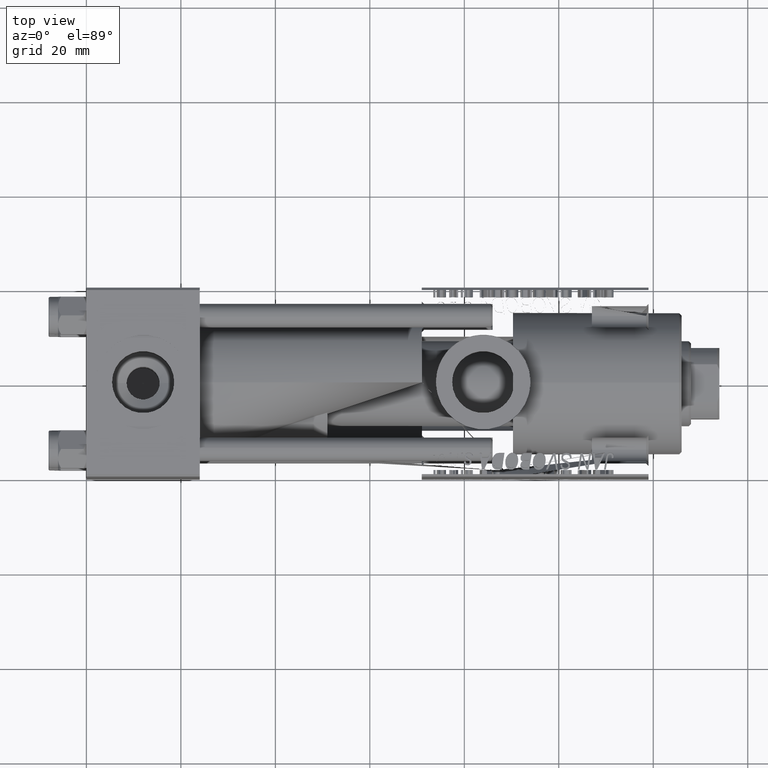
[diagram: clean part render]
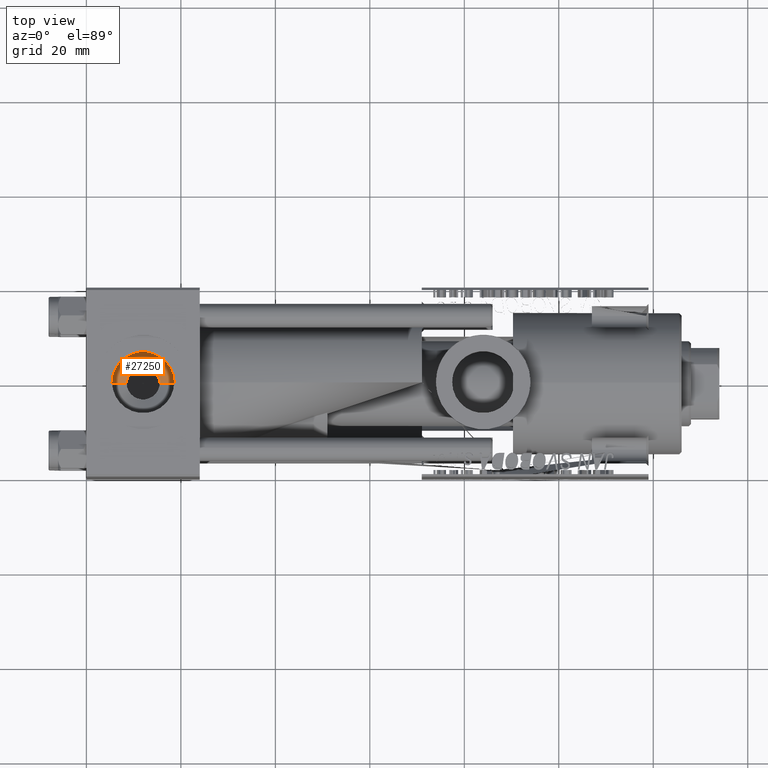
[diagram: same view with one face highlighted and labeled with its STEP entity id]
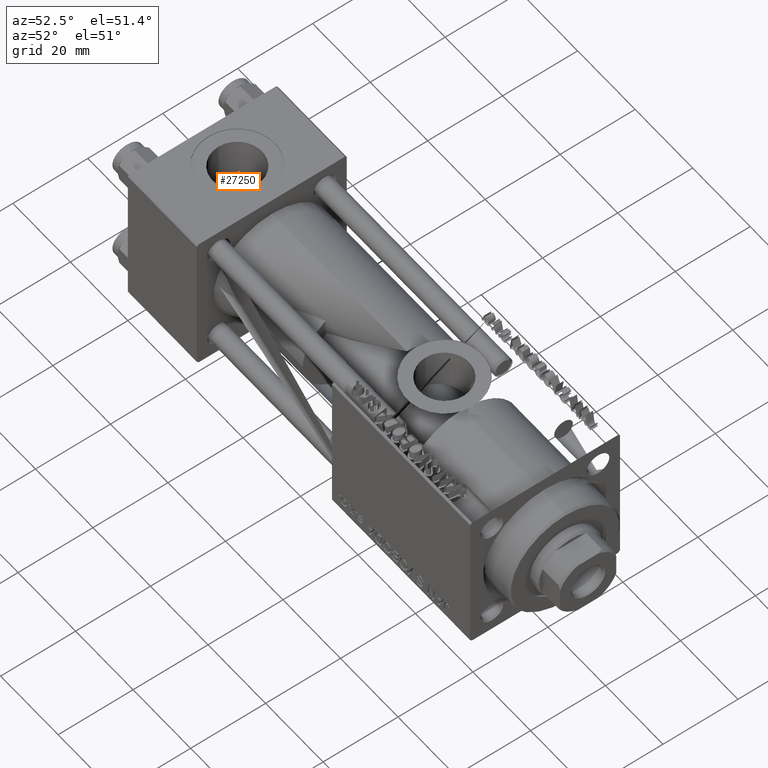
[diagram: same view with one face highlighted and labeled with its STEP entity id]
A machine part, top view. The second image highlights one B-rep face of the part: STEP entity #27250.
A second angle (auxiliary view) of the same face is appended — the face is thin or edge-on in the first view.
In plain terms, the highlighted conical surface has half-angle 60.452 deg.
Its self-contained STEP definition (entity closure, byte-faithful):
#590 = AXIS2_PLACEMENT_3D ( 'NONE', #48151, #16443, #1258 ) ;
#1258 = DIRECTION ( 'NONE',  ( 1.000000000000000000, 0.000000000000000000, 0.000000000000000000 ) ) ;
#2659 = VECTOR ( 'NONE', #6002, 1000.000000000000000 ) ;
#2707 = CARTESIAN_POINT ( 'NONE',  ( 18.57999999999999829, 1.540743955509788682E-30, 9.165987261146492315 ) ) ;
#6002 = DIRECTION ( 'NONE',  ( -0.8699429503561852961, 1.065372849594507103E-16, 0.4931523731318503412 ) ) ;
#7306 = VERTEX_POINT ( 'NONE', #42724 ) ;
#7537 = EDGE_CURVE ( 'NONE', #37423, #7306, #30631, .T. ) ;
#8172 = CARTESIAN_POINT ( 'NONE',  ( 15.50000000000000000, 1.540743955509788682E-30, 7.419999999999996376 ) ) ;
#9787 = AXIS2_PLACEMENT_3D ( 'NONE', #24308, #49178, #40542 ) ;
#13143 = EDGE_CURVE ( 'NONE', #7306, #41245, #29516, .T. ) ;
#13154 = DIRECTION ( 'NONE',  ( 1.000000000000000000, 0.000000000000000000, 0.000000000000000000 ) ) ;
#13443 = VECTOR ( 'NONE', #24155, 1000.000000000000000 ) ;
#13861 = CARTESIAN_POINT ( 'NONE',  ( 8.500000000000000000, 4.286263797015751879E-16, 7.419999999999996376 ) ) ;
#16443 = DIRECTION ( 'NONE',  ( 0.000000000000000000, 0.000000000000000000, 1.000000000000000000 ) ) ;
#16569 = CARTESIAN_POINT ( 'NONE',  ( 8.500000000000000000, 4.286263797015752865E-16, 7.419999999999996376 ) ) ;
#20260 = EDGE_LOOP ( 'NONE', ( #46508, #37617, #39584, #35770 ) ) ;
#24155 = DIRECTION ( 'NONE',  ( 0.8699429503561852961, 0.000000000000000000, 0.4931523731318503412 ) ) ;
#24308 = CARTESIAN_POINT ( 'NONE',  ( 12.00000000000000000, 1.540743955509788682E-30, 7.419999999999996376 ) ) ;
#27170 = EDGE_CURVE ( 'NONE', #31762, #37423, #44890, .T. ) ;
#27250 = ADVANCED_FACE ( 'NONE', ( #37129 ), #44072, .F. ) ;
#29407 = DIRECTION ( 'NONE',  ( -0.000000000000000000, -0.000000000000000000, -1.000000000000000000 ) ) ;
#29516 = CIRCLE ( 'NONE', #49539, 6.579999999999999183 ) ;
#30631 = LINE ( 'NONE', #13861, #2659 ) ;
#31762 = VERTEX_POINT ( 'NONE', #47415 ) ;
#35770 = ORIENTED_EDGE ( 'NONE', *, *, #13143, .F. ) ;
#36732 = CARTESIAN_POINT ( 'NONE',  ( 12.00000000000000000, 1.540743955509788682E-30, 9.165987261146492315 ) ) ;
#37129 = FACE_OUTER_BOUND ( 'NONE', #20260, .T. ) ;
#37423 = VERTEX_POINT ( 'NONE', #16569 ) ;
#37617 = ORIENTED_EDGE ( 'NONE', *, *, #27170, .F. ) ;
#39584 = ORIENTED_EDGE ( 'NONE', *, *, #41362, .T. ) ;
#40542 = DIRECTION ( 'NONE',  ( 1.000000000000000000, 0.000000000000000000, 0.000000000000000000 ) ) ;
#41245 = VERTEX_POINT ( 'NONE', #2707 ) ;
#41362 = EDGE_CURVE ( 'NONE', #31762, #41245, #48497, .T. ) ;
#42724 = CARTESIAN_POINT ( 'NONE',  ( 5.420000000000000817, 8.058175938389596335E-16, 9.165987261146492315 ) ) ;
#44072 = CONICAL_SURFACE ( 'NONE', #590, 3.499999999999999556, 1.055086625138361267 ) ;
#44890 = CIRCLE ( 'NONE', #9787, 3.499999999999999556 ) ;
#46508 = ORIENTED_EDGE ( 'NONE', *, *, #7537, .F. ) ;
#47415 = CARTESIAN_POINT ( 'NONE',  ( 15.50000000000000000, 1.540743955509788682E-30, 7.419999999999996376 ) ) ;
#48151 = CARTESIAN_POINT ( 'NONE',  ( 12.00000000000000000, 1.540743955509788682E-30, 7.419999999999996376 ) ) ;
#48497 = LINE ( 'NONE', #8172, #13443 ) ;
#49178 = DIRECTION ( 'NONE',  ( 0.000000000000000000, 0.000000000000000000, 1.000000000000000000 ) ) ;
#49539 = AXIS2_PLACEMENT_3D ( 'NONE', #36732, #29407, #13154 ) ;